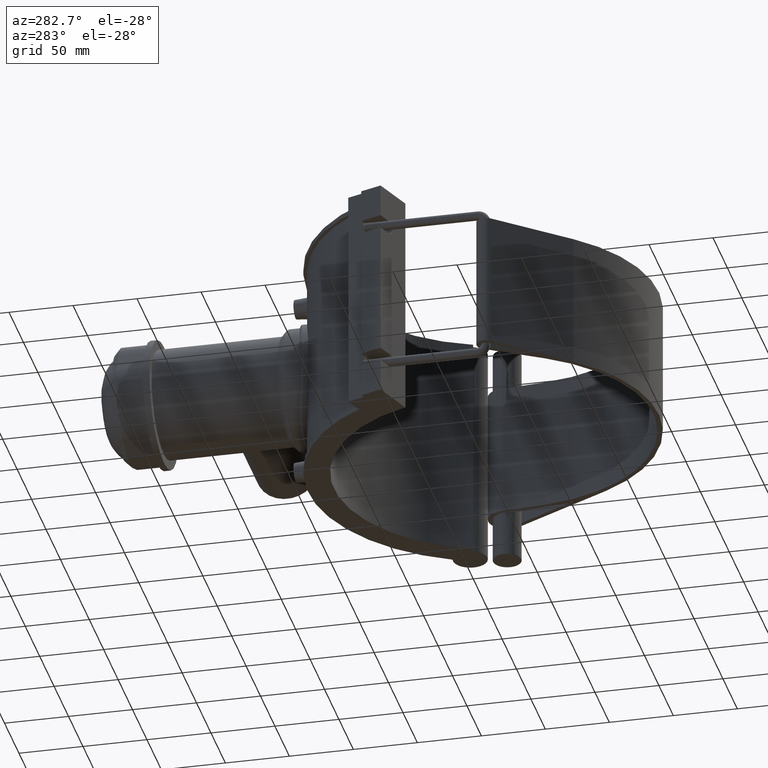
[diagram: clean part render]
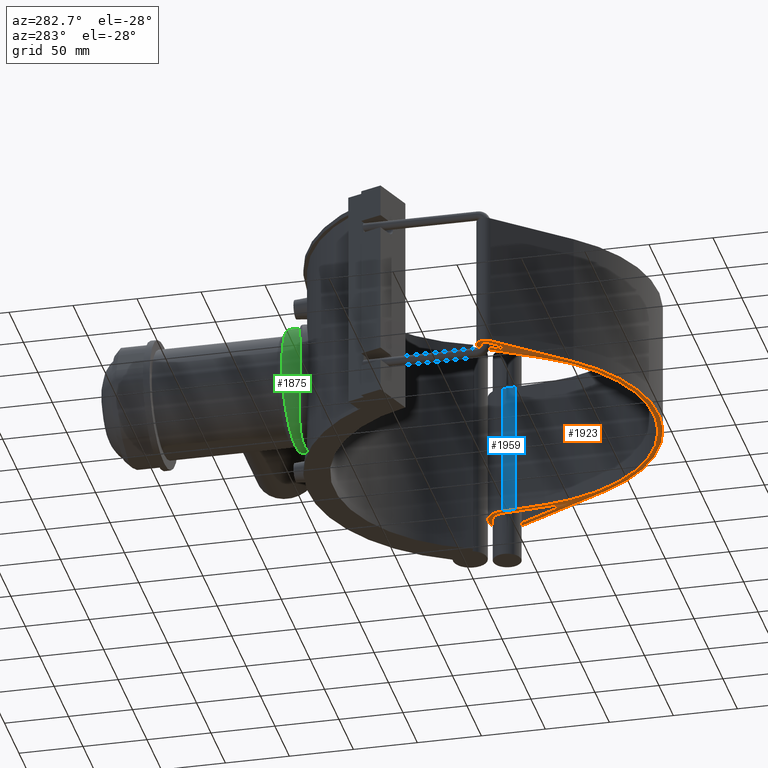
[diagram: same view with three faces highlighted in distinct colors, each labeled with its STEP entity id]
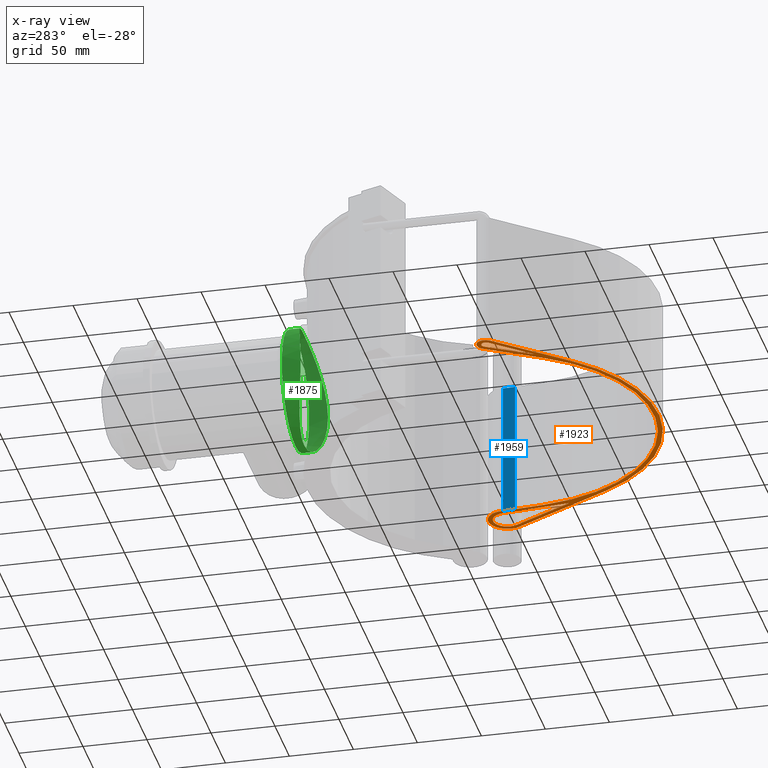
[diagram: x-ray of the same camera — body ghosted, the three highlighted faces saturated]
A machine part, auxiliary view with three faces highlighted in distinct colors.
The next image is the same camera in x-ray (body ghosted, the three faces saturated) — at least one of them is partly hidden behind the body in this view.
Their STEP definitions:

[orange] entity #1923 — the highlighted planar face has unit normal (0, 0, 1).
#95=LINE('',#3326,#256);
#99=LINE('',#3334,#260);
#102=LINE('',#3345,#263);
#103=LINE('',#3349,#264);
#104=LINE('',#3353,#265);
#105=LINE('',#3357,#266);
#106=LINE('',#3363,#267);
#107=LINE('',#3364,#268);
#256=VECTOR('',#2430,52.9196756847128);
#260=VECTOR('',#2436,52.9196756847128);
#263=VECTOR('',#2445,87.3267515625168);
#264=VECTOR('',#2448,72.0453404647995);
#265=VECTOR('',#2451,49.6257854616819);
#266=VECTOR('',#2454,23.4220609933609);
#267=VECTOR('',#2459,39.6138549528074);
#268=VECTOR('',#2460,39.6138549528074);
#374=FACE_BOUND('',#637,.T.);
#375=FACE_BOUND('',#638,.T.);
#502=FACE_OUTER_BOUND('',#636,.T.);
#636=EDGE_LOOP('',(#1467,#1468,#1469,#1470,#1471,#1472,#1473,#1474,#1475,
#1476));
#637=EDGE_LOOP('',(#1477,#1478,#1479));
#638=EDGE_LOOP('',(#1480,#1481,#1482));
#767=CIRCLE('',#2080,14.8076923076923);
#768=CIRCLE('',#2081,14.8076923076923);
#769=CIRCLE('',#2082,128.75);
#770=CIRCLE('',#2083,7.25);
#771=CIRCLE('',#2084,125.);
#772=CIRCLE('',#2085,125.);
#773=CIRCLE('',#2086,3.49999999999997);
#774=CIRCLE('',#2087,11.0576923076923);
#882=VERTEX_POINT('',#3324);
#883=VERTEX_POINT('',#3325);
#886=VERTEX_POINT('',#3333);
#888=VERTEX_POINT('',#3339);
#889=VERTEX_POINT('',#3340);
#890=VERTEX_POINT('',#3342);
#891=VERTEX_POINT('',#3344);
#892=VERTEX_POINT('',#3346);
#893=VERTEX_POINT('',#3348);
#894=VERTEX_POINT('',#3350);
#895=VERTEX_POINT('',#3352);
#896=VERTEX_POINT('',#3354);
#897=VERTEX_POINT('',#3356);
#898=VERTEX_POINT('',#3359);
#899=VERTEX_POINT('',#3360);
#900=VERTEX_POINT('',#3362);
#1095=EDGE_CURVE('',#882,#883,#95,.T.);
#1099=EDGE_CURVE('',#883,#886,#99,.T.);
#1102=EDGE_CURVE('',#888,#889,#767,.T.);
#1103=EDGE_CURVE('',#889,#890,#768,.T.);
#1104=EDGE_CURVE('',#890,#891,#102,.T.);
#1105=EDGE_CURVE('',#891,#892,#769,.T.);
#1106=EDGE_CURVE('',#892,#893,#103,.T.);
#1107=EDGE_CURVE('',#893,#894,#770,.T.);
#1108=EDGE_CURVE('',#894,#895,#104,.T.);
#1109=EDGE_CURVE('',#895,#896,#771,.T.);
#1110=EDGE_CURVE('',#896,#897,#105,.T.);
#1111=EDGE_CURVE('',#888,#897,#772,.T.);
#1112=EDGE_CURVE('',#898,#899,#773,.T.);
#1113=EDGE_CURVE('',#899,#900,#106,.T.);
#1114=EDGE_CURVE('',#900,#898,#107,.T.);
#1115=EDGE_CURVE('',#882,#886,#774,.T.);
#1467=ORIENTED_EDGE('',*,*,#1102,.T.);
#1468=ORIENTED_EDGE('',*,*,#1103,.T.);
#1469=ORIENTED_EDGE('',*,*,#1104,.T.);
#1470=ORIENTED_EDGE('',*,*,#1105,.T.);
#1471=ORIENTED_EDGE('',*,*,#1106,.T.);
#1472=ORIENTED_EDGE('',*,*,#1107,.T.);
#1473=ORIENTED_EDGE('',*,*,#1108,.T.);
#1474=ORIENTED_EDGE('',*,*,#1109,.T.);
#1475=ORIENTED_EDGE('',*,*,#1110,.T.);
#1476=ORIENTED_EDGE('',*,*,#1111,.F.);
#1477=ORIENTED_EDGE('',*,*,#1112,.T.);
#1478=ORIENTED_EDGE('',*,*,#1113,.T.);
#1479=ORIENTED_EDGE('',*,*,#1114,.T.);
#1480=ORIENTED_EDGE('',*,*,#1095,.T.);
#1481=ORIENTED_EDGE('',*,*,#1099,.T.);
#1482=ORIENTED_EDGE('',*,*,#1115,.F.);
#1829=PLANE('',#2079);
#1923=ADVANCED_FACE('',(#502,#374,#375),#1829,.F.);
#2079=AXIS2_PLACEMENT_3D('',#3338,#2439,#2440);
#2080=AXIS2_PLACEMENT_3D('',#3341,#2441,#2442);
#2081=AXIS2_PLACEMENT_3D('',#3343,#2443,#2444);
#2082=AXIS2_PLACEMENT_3D('',#3347,#2446,#2447);
#2083=AXIS2_PLACEMENT_3D('',#3351,#2449,#2450);
#2084=AXIS2_PLACEMENT_3D('',#3355,#2452,#2453);
#2085=AXIS2_PLACEMENT_3D('',#3358,#2455,#2456);
#2086=AXIS2_PLACEMENT_3D('',#3361,#2457,#2458);
#2087=AXIS2_PLACEMENT_3D('',#3365,#2461,#2462);
#2430=DIRECTION('',(-0.0905873526607484,-0.995888513608786,0.));
#2436=DIRECTION('',(0.481783564841131,0.876290246806942,0.));
#2439=DIRECTION('center_axis',(0.,0.,1.));
#2440=DIRECTION('ref_axis',(1.,0.,0.));
#2441=DIRECTION('center_axis',(0.,0.,-1.));
#2442=DIRECTION('ref_axis',(0.333937766224138,-0.942595124265574,0.));
#2443=DIRECTION('center_axis',(0.,0.,-1.));
#2444=DIRECTION('ref_axis',(0.333937766224138,-0.942595124265574,0.));
#2445=DIRECTION('',(-0.481783564841131,-0.876290246806942,0.));
#2446=DIRECTION('center_axis',(0.,0.,-1.));
#2447=DIRECTION('ref_axis',(0.98858601250743,0.150657545030643,0.));
#2448=DIRECTION('',(-0.654222560450905,0.756302083427688,0.));
#2449=DIRECTION('center_axis',(0.,0.,-1.));
#2450=DIRECTION('ref_axis',(-1.,0.,0.));
#2451=DIRECTION('',(0.511479804338621,-0.859295298342616,0.));
#2452=DIRECTION('center_axis',(0.,0.,1.));
#2453=DIRECTION('ref_axis',(0.859295298342616,0.511479804338621,0.));
#2454=DIRECTION('',(0.090587352660749,0.995888513608786,0.));
#2455=DIRECTION('center_axis',(0.,0.,-1.));
#2456=DIRECTION('ref_axis',(0.998677892414806,-0.0514049336340487,0.));
#2457=DIRECTION('center_axis',(0.,0.,1.));
#2458=DIRECTION('ref_axis',(0.,-1.,0.));
#2459=DIRECTION('',(0.654222560450905,-0.756302083427688,0.));
#2460=DIRECTION('',(-0.511479804338621,0.859295298342616,0.));
#2461=DIRECTION('center_axis',(0.,0.,-1.));
#2462=DIRECTION('ref_axis',(1.,0.,0.));
#3324=CARTESIAN_POINT('',(130.906897846979,22.6297365660324,-52.8));
#3325=CARTESIAN_POINT('',(126.113044523036,-30.0723605922753,-52.8));
#3326=CARTESIAN_POINT('',(123.663223567475,-57.0049121944555,-52.8));
#3333=CARTESIAN_POINT('',(151.608874524653,16.300635074425,-52.8));
#3334=CARTESIAN_POINT('',(116.363818225473,-47.8047046195874,-52.8));
#3338=CARTESIAN_POINT('Origin',(12.2062893552673,-74.02203081777,-52.8));
#3339=CARTESIAN_POINT('',(127.112526086027,21.8078621826871,-52.8));
#3340=CARTESIAN_POINT('',(137.721878529248,35.8284318855429,-52.8));
#3341=CARTESIAN_POINT('Origin',(141.91912660323,21.6280494933414,-52.8));
#3342=CARTESIAN_POINT('',(154.894962950179,14.4939467062708,-52.8));
#3343=CARTESIAN_POINT('Origin',(141.91912660323,21.6280494933414,-52.8));
#3344=CARTESIAN_POINT('',(112.822369276394,-62.0296339732956,-52.8));
#3345=CARTESIAN_POINT('',(112.822369276394,-62.0296339732956,-52.8));
#3346=CARTESIAN_POINT('',(-97.3738932413148,-84.2311546580541,-52.8));
#3347=CARTESIAN_POINT('Origin',(0.,0.,-52.8));
#3348=CARTESIAN_POINT('',(-144.507580348753,-29.7431135632691,-52.8));
#3349=CARTESIAN_POINT('',(-144.507580348753,-29.7431135632691,-52.8));
#3350=CARTESIAN_POINT('',(-132.794499330919,-21.291771418545,-52.8));
#3351=CARTESIAN_POINT('Origin',(-139.024390243902,-25.,-52.8));
#3352=CARTESIAN_POINT('',(-107.411912292827,-63.9349755423277,-52.8));
#3353=CARTESIAN_POINT('',(-107.411912292827,-63.9349755423277,-52.8));
#3354=CARTESIAN_POINT('',(124.486064201098,-11.3234190825937,-52.8));
#3355=CARTESIAN_POINT('Origin',(0.,0.,-52.8));
#3356=CARTESIAN_POINT('',(126.607806700345,12.0023424257388,-52.8));
#3357=CARTESIAN_POINT('',(127.280449110332,19.3971589226953,-52.8));
#3358=CARTESIAN_POINT('Origin',(2.12174249924715,23.3257615083324,-52.8));
#3359=CARTESIAN_POINT('',(-136.016856699703,-23.2098206848148,-52.8));
#3360=CARTESIAN_POINT('',(-141.671447535899,-27.2897789615782,-52.8));
#3361=CARTESIAN_POINT('Origin',(-139.024390243902,-25.,-52.8));
#3362=CARTESIAN_POINT('',(-115.755169919343,-57.2498199949886,-52.8));
#3363=CARTESIAN_POINT('',(-97.1797382939693,-78.7236096318914,-52.8));
#3364=CARTESIAN_POINT('',(-95.331273929945,-91.562333702586,-52.8));
#3365=CARTESIAN_POINT('Origin',(141.91912660323,21.6280494933414,-52.8));

[blue] entity #1959 — the highlighted cylindrical surface (partial cylindrical patch) has radius 125 mm, axis along (0, 0, 1).
#185=LINE('',#3594,#346);
#186=LINE('',#3595,#347);
#346=VECTOR('',#2676,105.6);
#347=VECTOR('',#2677,105.6);
#435=CYLINDRICAL_SURFACE('',#2155,125.);
#538=FACE_OUTER_BOUND('',#680,.T.);
#680=EDGE_LOOP('',(#1683,#1684,#1685,#1686));
#772=CIRCLE('',#2085,125.);
#780=CIRCLE('',#2094,125.);
#888=VERTEX_POINT('',#3339);
#897=VERTEX_POINT('',#3356);
#901=VERTEX_POINT('',#3367);
#910=VERTEX_POINT('',#3384);
#1111=EDGE_CURVE('',#888,#897,#772,.T.);
#1125=EDGE_CURVE('',#901,#910,#780,.T.);
#1227=EDGE_CURVE('',#897,#901,#185,.T.);
#1228=EDGE_CURVE('',#910,#888,#186,.T.);
#1683=ORIENTED_EDGE('',*,*,#1111,.T.);
#1684=ORIENTED_EDGE('',*,*,#1227,.T.);
#1685=ORIENTED_EDGE('',*,*,#1125,.T.);
#1686=ORIENTED_EDGE('',*,*,#1228,.T.);
#1959=ADVANCED_FACE('',(#538),#435,.F.);
#2085=AXIS2_PLACEMENT_3D('',#3358,#2455,#2456);
#2094=AXIS2_PLACEMENT_3D('',#3386,#2479,#2480);
#2155=AXIS2_PLACEMENT_3D('',#3593,#2674,#2675);
#2455=DIRECTION('center_axis',(0.,0.,-1.));
#2456=DIRECTION('ref_axis',(0.998677892414806,-0.0514049336340487,0.));
#2479=DIRECTION('center_axis',(0.,0.,1.));
#2480=DIRECTION('ref_axis',(0.998677892414806,-0.0514049336340487,0.));
#2674=DIRECTION('center_axis',(0.,0.,1.));
#2675=DIRECTION('ref_axis',(0.998677892414806,-0.0514049336340487,0.));
#2676=DIRECTION('',(0.,0.,1.));
#2677=DIRECTION('',(0.,0.,-1.));
#3339=CARTESIAN_POINT('',(127.112526086027,21.8078621826871,-52.8));
#3356=CARTESIAN_POINT('',(126.607806700345,12.0023424257388,-52.8));
#3358=CARTESIAN_POINT('Origin',(2.12174249924715,23.3257615083324,-52.8));
#3367=CARTESIAN_POINT('',(126.607806700345,12.0023424257388,52.8));
#3384=CARTESIAN_POINT('',(127.112526086027,21.8078621826871,52.8));
#3386=CARTESIAN_POINT('Origin',(2.12174249924715,23.3257615083324,52.8));
#3593=CARTESIAN_POINT('Origin',(2.12174249924715,23.3257615083324,0.));
#3594=CARTESIAN_POINT('',(126.607806700345,12.0023424257388,0.));
#3595=CARTESIAN_POINT('',(127.112526086027,21.8078621826871,0.));

[green] entity #1875 — the highlighted cylindrical surface (bore or boss wall) has radius 47.5 mm, axis along (0, 1, 0).
#363=FACE_BOUND('',#578,.T.);
#402=B_SPLINE_CURVE_WITH_KNOTS('',3,(#2939,#2940,#2941,#2942,#2943,#2944,
#2945,#2946,#2947,#2948,#2949,#2950,#2951,#2952,#2953,#2954,#2955,#2956,
#2957,#2958,#2959,#2960,#2961,#2962,#2963,#2964,#2965,#2966,#2967,#2968,
#2969,#2970,#2971,#2972),.UNSPECIFIED.,.F.,.F.,(4,2,2,2,2,2,2,2,2,2,2,2,
2,2,2,2,4),(7.21237116106147,8.11374031650677,9.01510947195209,9.9164786273974,
10.8178477828427,11.7195714176628,12.6212950524828,13.5230186873029,14.4247423221229,
15.326465956943,16.228189591763,17.1299132265831,18.0316368614032,18.9330060168485,
19.8343751722938,20.7357443277391,21.6371134831844),.UNSPECIFIED.);
#403=B_SPLINE_CURVE_WITH_KNOTS('',3,(#2973,#2974,#2975,#2976,#2977,#2978,
#2979,#2980,#2981,#2982,#2983,#2984,#2985,#2986,#2987,#2988,#2989,#2990,
#2991,#2992,#2993,#2994,#2995,#2996,#2997,#2998,#2999,#3000,#3001,#3002,
#3003,#3004,#3005,#3006,#3007),.UNSPECIFIED.,.F.,.F.,(4,2,2,2,2,2,2,2,3,
2,2,2,2,2,2,2,4),(21.6371134831844,22.5384826386297,23.439851794075,24.3412209495203,
25.2425901049656,26.1443137397857,27.0460373746057,27.9477610094258,28.8494846442459,
29.7512082790659,30.652931913886,31.554655548706,32.4563791835261,33.3577483389714,
34.2591174944167,35.160486649862,36.0618558053073),.UNSPECIFIED.);
#415=CYLINDRICAL_SURFACE('',#1999,47.5);
#454=FACE_OUTER_BOUND('',#577,.T.);
#577=EDGE_LOOP('',(#1269));
#578=EDGE_LOOP('',(#1270,#1271));
#734=CIRCLE('',#2000,47.5);
#821=VERTEX_POINT('',#2935);
#822=VERTEX_POINT('',#2937);
#823=VERTEX_POINT('',#2938);
#999=EDGE_CURVE('',#821,#821,#734,.T.);
#1000=EDGE_CURVE('',#822,#823,#402,.T.);
#1001=EDGE_CURVE('',#823,#822,#403,.T.);
#1269=ORIENTED_EDGE('',*,*,#999,.F.);
#1270=ORIENTED_EDGE('',*,*,#1000,.F.);
#1271=ORIENTED_EDGE('',*,*,#1001,.F.);
#1875=ADVANCED_FACE('',(#454,#363),#415,.T.);
#1999=AXIS2_PLACEMENT_3D('',#2934,#2216,#2217);
#2000=AXIS2_PLACEMENT_3D('',#2936,#2218,#2219);
#2216=DIRECTION('center_axis',(0.,1.,3.06161699786838E-16));
#2217=DIRECTION('ref_axis',(0.,0.,1.));
#2218=DIRECTION('center_axis',(0.,1.,3.06161699786838E-16));
#2219=DIRECTION('ref_axis',(0.,0.,-1.));
#2934=CARTESIAN_POINT('Origin',(0.,80.025,-1.37696224479131E-14));
#2935=CARTESIAN_POINT('',(5.81707229594993E-15,155.1,47.5));
#2936=CARTESIAN_POINT('Origin',(0.,155.1,9.21546716358384E-15));
#2937=CARTESIAN_POINT('',(-1.10161879618431E-11,148.2,47.5));
#2938=CARTESIAN_POINT('',(9.8283936544874E-10,148.2,-47.5));
#2939=CARTESIAN_POINT('Ctrl Pts',(0.,148.2,47.5));
#2940=CARTESIAN_POINT('Ctrl Pts',(-3.00456385148436,148.2,47.5));
#2941=CARTESIAN_POINT('Ctrl Pts',(-6.10509567329788,148.106290181999,47.2103196415738));
#2942=CARTESIAN_POINT('Ctrl Pts',(-12.259409552007,147.724243988884,45.9977537632002));
#2943=CARTESIAN_POINT('Ctrl Pts',(-15.3132713163893,147.436148494906,45.0751969348987));
#2944=CARTESIAN_POINT('Ctrl Pts',(-21.1588927743061,146.711333640403,42.644705291115));
#2945=CARTESIAN_POINT('Ctrl Pts',(-23.9556942982706,146.274598224775,41.134840246666));
#2946=CARTESIAN_POINT('Ctrl Pts',(-29.1218618122573,145.334271731771,37.6545818690835));
#2947=CARTESIAN_POINT('Ctrl Pts',(-31.4912121741688,144.83154433608,35.6839320385533));
#2948=CARTESIAN_POINT('Ctrl Pts',(-35.6847564692025,143.855741905523,31.4903877435195));
#2949=CARTESIAN_POINT('Ctrl Pts',(-37.6555045593094,143.347691273862,29.1206480766677));
#2950=CARTESIAN_POINT('Ctrl Pts',(-41.1354024846859,142.388118465107,23.954703709114));
#2951=CARTESIAN_POINT('Ctrl Pts',(-42.6448455071607,141.937574440747,21.1585148648605));
#2952=CARTESIAN_POINT('Ctrl Pts',(-45.0748646346219,141.18468263673,15.3141112078865));
#2953=CARTESIAN_POINT('Ctrl Pts',(-45.9973687490034,140.882540087399,12.2608360508878));
#2954=CARTESIAN_POINT('Ctrl Pts',(-47.2101074987723,140.480795071112,6.10669975335989));
#2955=CARTESIAN_POINT('Ctrl Pts',(-47.5,140.381587111701,3.00574544940019));
#2956=CARTESIAN_POINT('Ctrl Pts',(-47.5,140.381587111701,-3.00574544940019));
#2957=CARTESIAN_POINT('Ctrl Pts',(-47.2101074987723,140.480795071112,-6.10669975335989));
#2958=CARTESIAN_POINT('Ctrl Pts',(-45.9973687490034,140.882540087399,-12.2608360508878));
#2959=CARTESIAN_POINT('Ctrl Pts',(-45.0748646346219,141.18468263673,-15.3141112078865));
#2960=CARTESIAN_POINT('Ctrl Pts',(-42.6448455071607,141.937574440747,-21.1585148648604));
#2961=CARTESIAN_POINT('Ctrl Pts',(-41.1354024846859,142.388118465107,-23.954703709114));
#2962=CARTESIAN_POINT('Ctrl Pts',(-37.6555045593094,143.347691273862,-29.1206480766677));
#2963=CARTESIAN_POINT('Ctrl Pts',(-35.6847564692025,143.855741905523,-31.4903877435195));
#2964=CARTESIAN_POINT('Ctrl Pts',(-31.4912121741688,144.83154433608,-35.6839320385532));
#2965=CARTESIAN_POINT('Ctrl Pts',(-29.1218618122573,145.334271731771,-37.6545818690835));
#2966=CARTESIAN_POINT('Ctrl Pts',(-23.9556942982706,146.274598224775,-41.134840246666));
#2967=CARTESIAN_POINT('Ctrl Pts',(-21.1588927743061,146.711333640403,-42.644705291115));
#2968=CARTESIAN_POINT('Ctrl Pts',(-15.3132713163893,147.436148494906,-45.0751969348987));
#2969=CARTESIAN_POINT('Ctrl Pts',(-12.259409552007,147.724243988884,-45.9977537632002));
#2970=CARTESIAN_POINT('Ctrl Pts',(-6.1050956732979,148.106290181999,-47.2103196415738));
#2971=CARTESIAN_POINT('Ctrl Pts',(-3.00456385148438,148.2,-47.5));
#2972=CARTESIAN_POINT('Ctrl Pts',(-7.21644966006352E-15,148.2,-47.5));
#2973=CARTESIAN_POINT('Ctrl Pts',(-7.21644966006352E-15,148.2,-47.5));
#2974=CARTESIAN_POINT('Ctrl Pts',(3.00456385148437,148.2,-47.5));
#2975=CARTESIAN_POINT('Ctrl Pts',(6.10509567329789,148.106290181999,-47.2103196415738));
#2976=CARTESIAN_POINT('Ctrl Pts',(12.259409552007,147.724243988884,-45.9977537632002));
#2977=CARTESIAN_POINT('Ctrl Pts',(15.3132713163893,147.436148494906,-45.0751969348987));
#2978=CARTESIAN_POINT('Ctrl Pts',(21.1588927743061,146.711333640403,-42.644705291115));
#2979=CARTESIAN_POINT('Ctrl Pts',(23.9556942982706,146.274598224775,-41.134840246666));
#2980=CARTESIAN_POINT('Ctrl Pts',(29.1218618122573,145.334271731771,-37.6545818690835));
#2981=CARTESIAN_POINT('Ctrl Pts',(31.4912121741687,144.83154433608,-35.6839320385533));
#2982=CARTESIAN_POINT('Ctrl Pts',(35.6847564692025,143.855741905523,-31.4903877435195));
#2983=CARTESIAN_POINT('Ctrl Pts',(37.6555045593094,143.347691273862,-29.1206480766677));
#2984=CARTESIAN_POINT('Ctrl Pts',(41.1354024846859,142.388118465107,-23.954703709114));
#2985=CARTESIAN_POINT('Ctrl Pts',(42.6448455071607,141.937574440747,-21.1585148648605));
#2986=CARTESIAN_POINT('Ctrl Pts',(45.0748646346219,141.18468263673,-15.3141112078866));
#2987=CARTESIAN_POINT('Ctrl Pts',(45.9973687490034,140.882540087399,-12.2608360508878));
#2988=CARTESIAN_POINT('Ctrl Pts',(47.2101074987723,140.480795071112,-6.1066997533599));
#2989=CARTESIAN_POINT('Ctrl Pts',(47.5,140.381587111701,-3.0057454494002));
#2990=CARTESIAN_POINT('Ctrl Pts',(47.5,140.381587111701,0.));
#2991=CARTESIAN_POINT('Ctrl Pts',(47.5,140.381587111701,3.00574544940019));
#2992=CARTESIAN_POINT('Ctrl Pts',(47.2101074987723,140.480795071112,6.10669975335989));
#2993=CARTESIAN_POINT('Ctrl Pts',(45.9973687490034,140.882540087399,12.2608360508878));
#2994=CARTESIAN_POINT('Ctrl Pts',(45.0748646346219,141.18468263673,15.3141112078865));
#2995=CARTESIAN_POINT('Ctrl Pts',(42.6448455071607,141.937574440747,21.1585148648605));
#2996=CARTESIAN_POINT('Ctrl Pts',(41.1354024846859,142.388118465107,23.954703709114));
#2997=CARTESIAN_POINT('Ctrl Pts',(37.6555045593094,143.347691273862,29.1206480766677));
#2998=CARTESIAN_POINT('Ctrl Pts',(35.6847564692025,143.855741905523,31.4903877435195));
#2999=CARTESIAN_POINT('Ctrl Pts',(31.4912121741688,144.83154433608,35.6839320385533));
#3000=CARTESIAN_POINT('Ctrl Pts',(29.1218618122573,145.334271731771,37.6545818690835));
#3001=CARTESIAN_POINT('Ctrl Pts',(23.9556942982706,146.274598224775,41.134840246666));
#3002=CARTESIAN_POINT('Ctrl Pts',(21.1588927743061,146.711333640403,42.644705291115));
#3003=CARTESIAN_POINT('Ctrl Pts',(15.3132713163893,147.436148494906,45.0751969348987));
#3004=CARTESIAN_POINT('Ctrl Pts',(12.259409552007,147.724243988884,45.9977537632002));
#3005=CARTESIAN_POINT('Ctrl Pts',(6.10509567329789,148.106290181999,47.2103196415738));
#3006=CARTESIAN_POINT('Ctrl Pts',(3.00456385148437,148.2,47.5));
#3007=CARTESIAN_POINT('Ctrl Pts',(-5.55111512312578E-16,148.2,47.5));